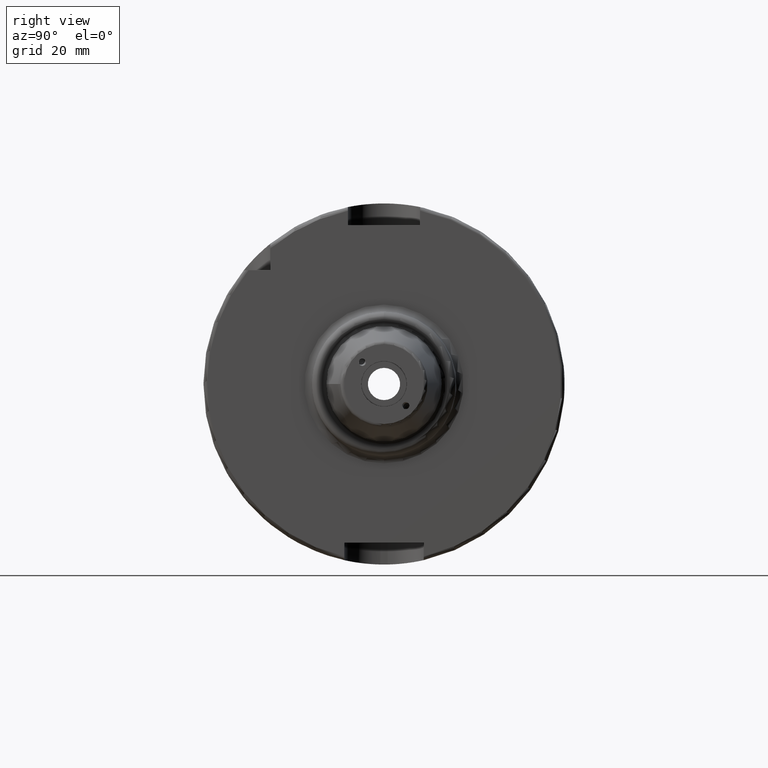
[diagram: clean part render]
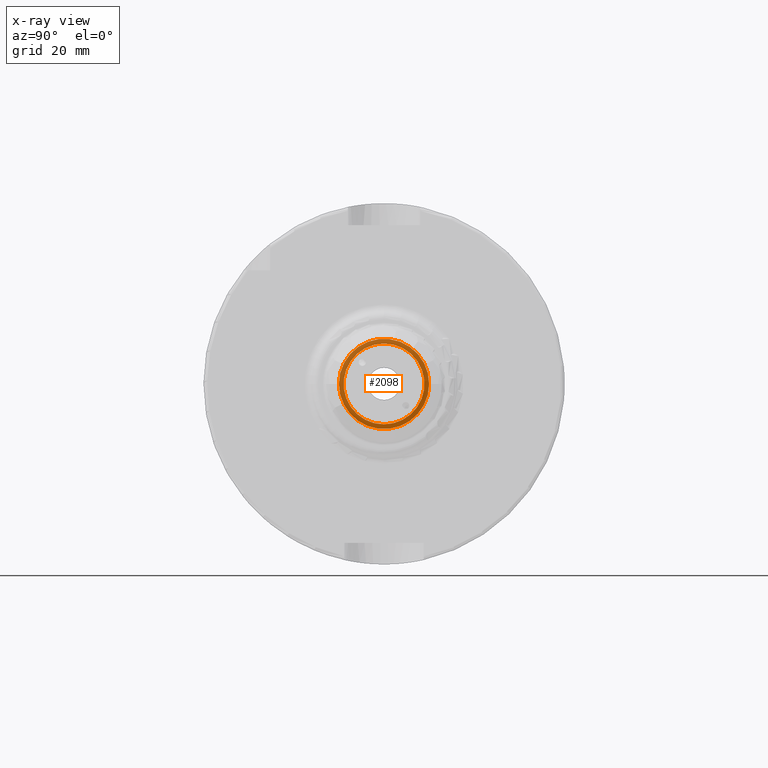
[diagram: x-ray — body ghosted, one internal face saturated and labeled with its STEP entity id]
A machine part, right view, then the same camera in x-ray: the body is ghosted and one INTERNAL B-rep face — a face not visible from any outside direction — is saturated and labeled: STEP entity #2098.
In plain terms, the highlighted planar face has unit normal (-1, 0, 0).
Its self-contained STEP definition (entity closure, byte-faithful):
#96=FACE_BOUND('',#447,.T.);
#133=PLANE('',#2364);
#314=FACE_OUTER_BOUND('',#446,.T.);
#446=EDGE_LOOP('',(#1898));
#447=EDGE_LOOP('',(#1899));
#788=CIRCLE('',#2355,11.188101);
#793=CIRCLE('',#2363,12.5);
#1006=VERTEX_POINT('',#4493);
#1010=VERTEX_POINT('',#4506);
#1308=EDGE_CURVE('',#1006,#1006,#788,.T.);
#1314=EDGE_CURVE('',#1010,#1010,#793,.T.);
#1898=ORIENTED_EDGE('',*,*,#1314,.F.);
#1899=ORIENTED_EDGE('',*,*,#1308,.T.);
#2098=ADVANCED_FACE('',(#314,#96),#133,.F.);
#2355=AXIS2_PLACEMENT_3D('',#4495,#2935,#2936);
#2363=AXIS2_PLACEMENT_3D('',#4508,#2952,#2953);
#2364=AXIS2_PLACEMENT_3D('',#4509,#2954,#2955);
#2935=DIRECTION('center_axis',(-1.,0.,0.));
#2936=DIRECTION('ref_axis',(0.,0.,1.));
#2952=DIRECTION('center_axis',(-1.,0.,0.));
#2953=DIRECTION('ref_axis',(0.,0.,1.));
#2954=DIRECTION('center_axis',(-1.,0.,0.));
#2955=DIRECTION('ref_axis',(0.,0.,1.));
#4493=CARTESIAN_POINT('',(22.5,-1.37014720781873E-15,-11.188101));
#4495=CARTESIAN_POINT('Origin',(22.5,0.,0.));
#4506=CARTESIAN_POINT('',(22.5,-12.5,1.53080849893419E-15));
#4508=CARTESIAN_POINT('Origin',(22.5,0.,0.));
#4509=CARTESIAN_POINT('Origin',(22.5,10.,0.));